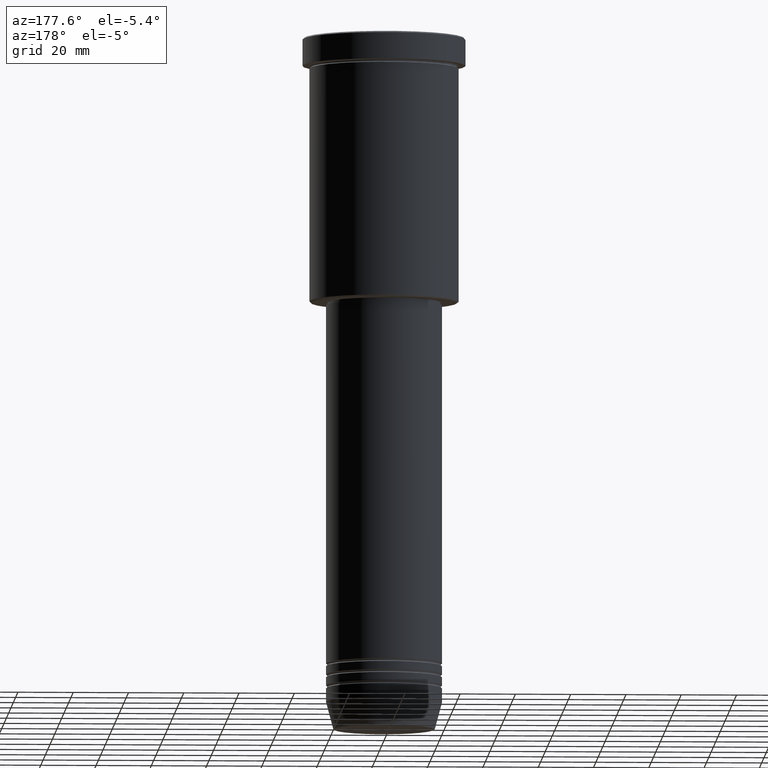
[diagram: clean part render]
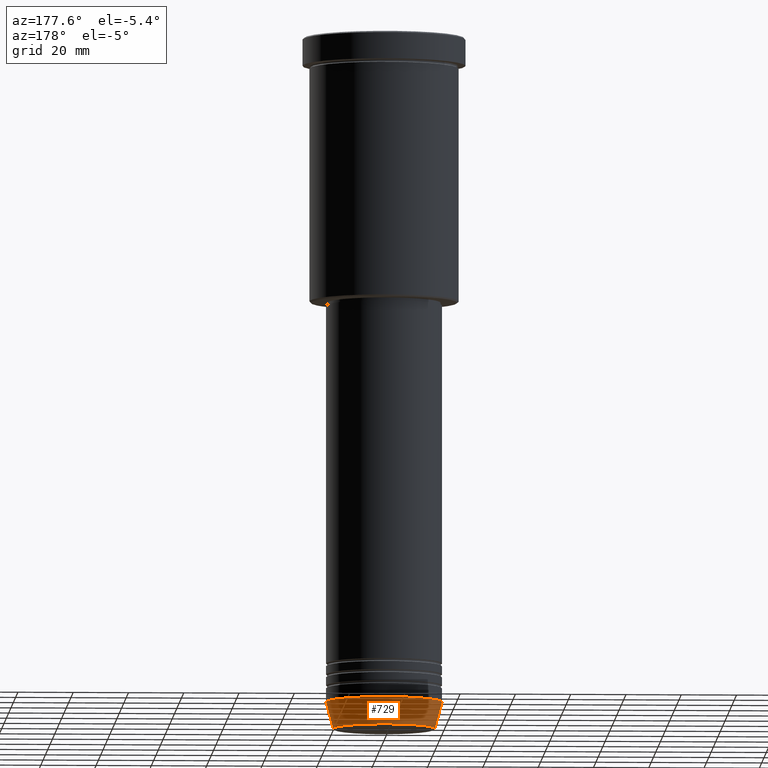
[diagram: same view with one face highlighted and labeled with its STEP entity id]
A machine part, auxiliary view. The second image highlights one B-rep face of the part: STEP entity #729.
In plain terms, the highlighted conical surface has half-angle 15 deg.
Its self-contained STEP definition (entity closure, byte-faithful):
#11 = EDGE_CURVE ( 'NONE', #1121, #470, #364, .T. ) ;
#44 = DIRECTION ( 'NONE',  ( 1.000000000000000000, 0.000000000000000000, 0.000000000000000000 ) ) ;
#167 = EDGE_LOOP ( 'NONE', ( #909, #1088, #968, #589 ) ) ;
#250 = VECTOR ( 'NONE', #360, 1000.000000000000114 ) ;
#281 = FACE_OUTER_BOUND ( 'NONE', #167, .T. ) ;
#346 = VERTEX_POINT ( 'NONE', #1113 ) ;
#360 = DIRECTION ( 'NONE',  ( 0.2588190451025211836, 0.000000000000000000, 0.9659258262890680902 ) ) ;
#361 = EDGE_CURVE ( 'NONE', #1121, #628, #450, .T. ) ;
#364 = CIRCLE ( 'NONE', #456, 18.41980749484383040 ) ;
#450 = LINE ( 'NONE', #1182, #250 ) ;
#455 = CARTESIAN_POINT ( 'NONE',  ( 18.41980749484383040, 0.000000000000000000, -250.6294095225512422 ) ) ;
#456 = AXIS2_PLACEMENT_3D ( 'NONE', #1062, #619, #543 ) ;
#458 = DIRECTION ( 'NONE',  ( 1.000000000000000000, 0.000000000000000000, 0.000000000000000000 ) ) ;
#470 = VERTEX_POINT ( 'NONE', #942 ) ;
#511 = LINE ( 'NONE', #881, #866 ) ;
#531 = CARTESIAN_POINT ( 'NONE',  ( 21.00000000000000000, 0.000000000000000000, -241.0000000000000000 ) ) ;
#543 = DIRECTION ( 'NONE',  ( 1.000000000000000000, 0.000000000000000000, 0.000000000000000000 ) ) ;
#579 = CARTESIAN_POINT ( 'NONE',  ( 0.000000000000000000, 0.000000000000000000, -241.0000000000000000 ) ) ;
#589 = ORIENTED_EDGE ( 'NONE', *, *, #361, .F. ) ;
#619 = DIRECTION ( 'NONE',  ( -0.000000000000000000, -0.000000000000000000, 1.000000000000000000 ) ) ;
#628 = VERTEX_POINT ( 'NONE', #531 ) ;
#640 = CARTESIAN_POINT ( 'NONE',  ( 0.000000000000000000, 0.000000000000000000, -241.0000000000000000 ) ) ;
#729 = ADVANCED_FACE ( 'NONE', ( #281 ), #1001, .T. ) ;
#772 = AXIS2_PLACEMENT_3D ( 'NONE', #579, #838, #44 ) ;
#795 = CIRCLE ( 'NONE', #772, 21.00000000000000000 ) ;
#813 = AXIS2_PLACEMENT_3D ( 'NONE', #640, #1181, #458 ) ;
#837 = EDGE_CURVE ( 'NONE', #628, #346, #795, .T. ) ;
#838 = DIRECTION ( 'NONE',  ( -0.000000000000000000, -0.000000000000000000, 1.000000000000000000 ) ) ;
#866 = VECTOR ( 'NONE', #976, 1000.000000000000114 ) ;
#881 = CARTESIAN_POINT ( 'NONE',  ( -21.00000000000000000, 2.571758278209441661E-15, -241.0000000000000000 ) ) ;
#909 = ORIENTED_EDGE ( 'NONE', *, *, #11, .T. ) ;
#942 = CARTESIAN_POINT ( 'NONE',  ( -18.41980749484383040, 2.413767053578266669E-15, -250.6294095225512422 ) ) ;
#968 = ORIENTED_EDGE ( 'NONE', *, *, #837, .F. ) ;
#976 = DIRECTION ( 'NONE',  ( -0.2588190451025211836, 3.169619151431770488E-17, 0.9659258262890680902 ) ) ;
#1001 = CONICAL_SURFACE ( 'NONE', #813, 21.00000000000000000, 0.2617993877991499074 ) ;
#1062 = CARTESIAN_POINT ( 'NONE',  ( 0.000000000000000000, 0.000000000000000000, -250.6294095225512422 ) ) ;
#1088 = ORIENTED_EDGE ( 'NONE', *, *, #1104, .T. ) ;
#1104 = EDGE_CURVE ( 'NONE', #470, #346, #511, .T. ) ;
#1113 = CARTESIAN_POINT ( 'NONE',  ( -21.00000000000000000, 2.571758278209441661E-15, -241.0000000000000000 ) ) ;
#1121 = VERTEX_POINT ( 'NONE', #455 ) ;
#1181 = DIRECTION ( 'NONE',  ( -0.000000000000000000, -0.000000000000000000, 1.000000000000000000 ) ) ;
#1182 = CARTESIAN_POINT ( 'NONE',  ( 21.00000000000000000, 0.000000000000000000, -241.0000000000000000 ) ) ;